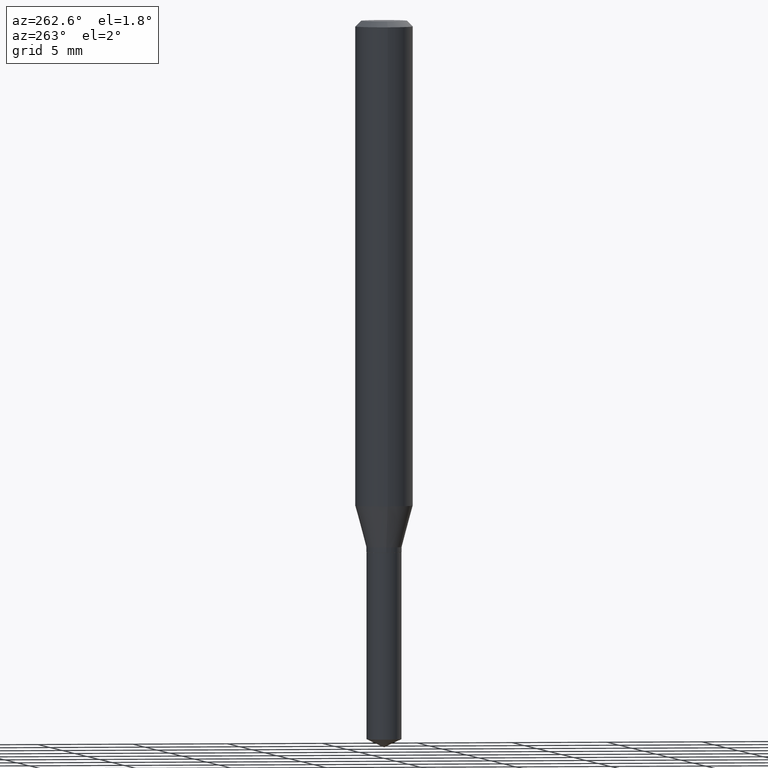
[diagram: clean part render]
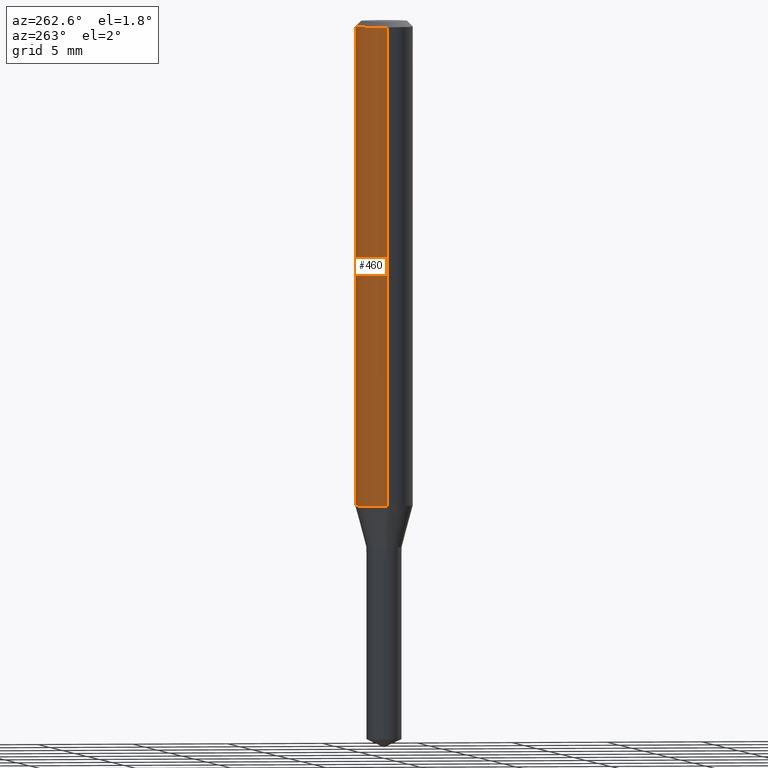
[diagram: same view with one face highlighted and labeled with its STEP entity id]
A machine part, auxiliary view. The second image highlights one B-rep face of the part: STEP entity #460.
In plain terms, the highlighted cylindrical surface (edge-blend (fillet) strip) has radius 1.4999 mm, axis along (-0, 0, 1).
Its self-contained STEP definition (entity closure, byte-faithful):
#4 = AXIS2_PLACEMENT_3D ( 'NONE', #257, #133, #23 ) ;
#22 = VERTEX_POINT ( 'NONE', #79 ) ;
#23 = DIRECTION ( 'NONE',  ( 1.000000000000000000, -6.982962677686266711E-15, 0.000000000000000000 ) ) ;
#39 = ORIENTED_EDGE ( 'NONE', *, *, #287, .T. ) ;
#47 = DIRECTION ( 'NONE',  ( -2.445468806185136877E-29, 3.491481338843145188E-15, 1.000000000000000000 ) ) ;
#64 = EDGE_CURVE ( 'NONE', #403, #22, #241, .T. ) ;
#79 = CARTESIAN_POINT ( 'NONE',  ( -0.05904999999999999832, -1.343854144028238123E-15, -0.01181000000000007044 ) ) ;
#98 = CARTESIAN_POINT ( 'NONE',  ( -0.05905000000000011628, -3.066049378911078798E-15, -0.9983226390470507638 ) ) ;
#109 = CARTESIAN_POINT ( 'NONE',  ( 0.05905000000000011628, -3.897968810494794000E-15, -0.9983226390470507638 ) ) ;
#124 = CARTESIAN_POINT ( 'NONE',  ( 0.05905000000000006077, -4.123439461173744764E-16, 2.879382386107503023E-30 ) ) ;
#133 = DIRECTION ( 'NONE',  ( -2.445468806185136597E-29, 3.491481338843145583E-15, 1.000000000000000000 ) ) ;
#158 = CARTESIAN_POINT ( 'NONE',  ( -0.05905000000000006077, 4.195754854663395916E-16, -2.904631170795524694E-30 ) ) ;
#185 = FACE_OUTER_BOUND ( 'NONE', #258, .T. ) ;
#187 = CYLINDRICAL_SURFACE ( 'NONE', #305, 0.05905000000000006077 ) ;
#189 = VECTOR ( 'NONE', #47, 39.37007874015748143 ) ;
#192 = DIRECTION ( 'NONE',  ( -2.445468806185136597E-29, 3.491481338843145583E-15, 1.000000000000000000 ) ) ;
#203 = LINE ( 'NONE', #124, #356 ) ;
#210 = EDGE_CURVE ( 'NONE', #477, #375, #203, .T. ) ;
#230 = ORIENTED_EDGE ( 'NONE', *, *, #210, .F. ) ;
#241 = LINE ( 'NONE', #158, #189 ) ;
#242 = CIRCLE ( 'NONE', #457, 0.05904999999999999832 ) ;
#257 = CARTESIAN_POINT ( 'NONE',  ( 2.441366872297986055E-29, -3.485624864377419475E-15, -0.9983226390470507638 ) ) ;
#258 = EDGE_LOOP ( 'NONE', ( #39, #441, #475, #230 ) ) ;
#278 = DIRECTION ( 'NONE',  ( -2.445468806185136877E-29, 3.491481338843145188E-15, 1.000000000000000000 ) ) ;
#287 = EDGE_CURVE ( 'NONE', #477, #403, #418, .T. ) ;
#305 = AXIS2_PLACEMENT_3D ( 'NONE', #338, #192, #485 ) ;
#338 = CARTESIAN_POINT ( 'NONE',  ( 0.000000000000000000, 0.000000000000000000, 0.000000000000000000 ) ) ;
#345 = CARTESIAN_POINT ( 'NONE',  ( 2.888098660104663766E-31, -4.123439461173779647E-17, -0.01181000000000007044 ) ) ;
#356 = VECTOR ( 'NONE', #278, 39.37007874015748143 ) ;
#363 = CARTESIAN_POINT ( 'NONE',  ( 0.05904999999999999832, -4.535783407291118600E-16, -0.01181000000000007044 ) ) ;
#375 = VERTEX_POINT ( 'NONE', #363 ) ;
#403 = VERTEX_POINT ( 'NONE', #98 ) ;
#418 = CIRCLE ( 'NONE', #4, 0.05905000000000011628 ) ;
#438 = EDGE_CURVE ( 'NONE', #375, #22, #242, .T. ) ;
#441 = ORIENTED_EDGE ( 'NONE', *, *, #64, .T. ) ;
#442 = DIRECTION ( 'NONE',  ( -2.445468806185136597E-29, 3.491481338843145583E-15, 1.000000000000000000 ) ) ;
#457 = AXIS2_PLACEMENT_3D ( 'NONE', #345, #442, #489 ) ;
#460 = ADVANCED_FACE ( 'NONE', ( #185 ), #187, .T. ) ;
#475 = ORIENTED_EDGE ( 'NONE', *, *, #438, .F. ) ;
#477 = VERTEX_POINT ( 'NONE', #109 ) ;
#485 = DIRECTION ( 'NONE',  ( 1.000000000000000000, -6.982962677686266711E-15, 4.876176775795935793E-29 ) ) ;
#489 = DIRECTION ( 'NONE',  ( 1.000000000000000000, -6.982962677686266711E-15, 0.000000000000000000 ) ) ;